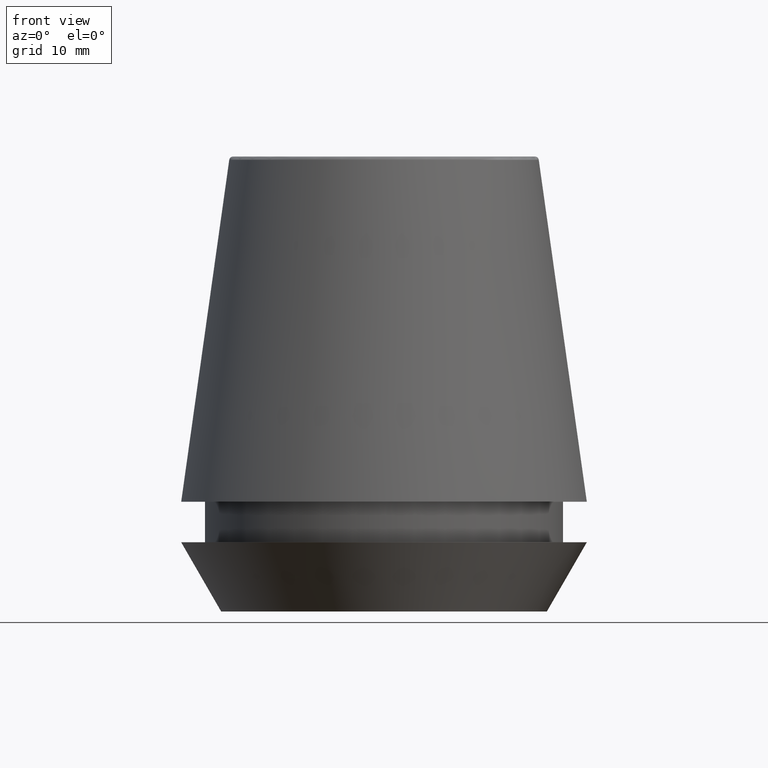
[diagram: clean part render]
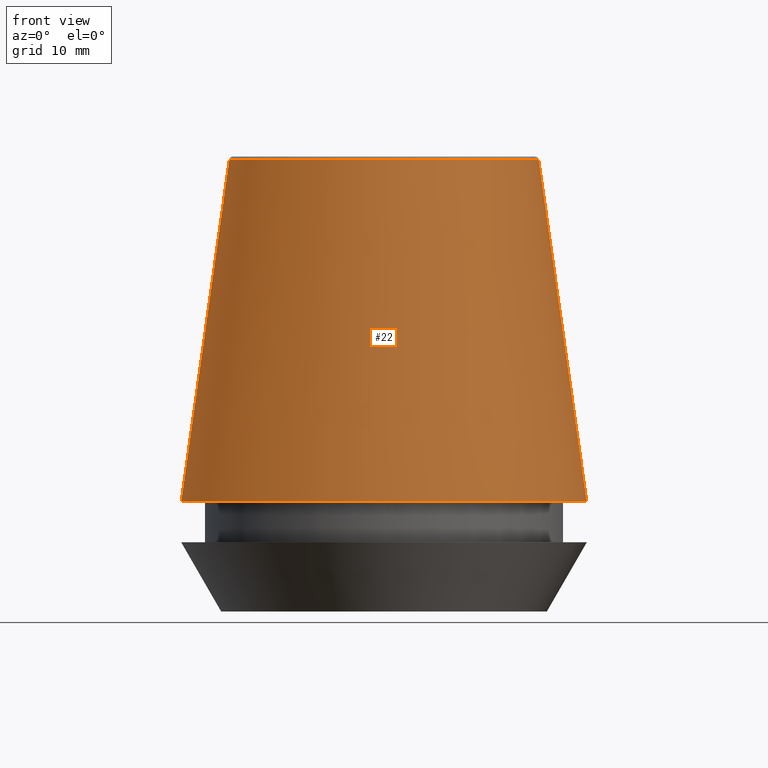
[diagram: same view with one face highlighted and labeled with its STEP entity id]
A machine part, front view. The second image highlights one B-rep face of the part: STEP entity #22.
In plain terms, the highlighted conical surface has half-angle 8 deg.
Its self-contained STEP definition (entity closure, byte-faithful):
#16 = DIRECTION ( 'NONE',  ( -0.1391731009600587200, 0.0000000000000000000, -0.9902680687415712500 ) ) ;
#18 = VERTEX_POINT ( 'NONE', #40 ) ;
#22 = ADVANCED_FACE ( 'NONE', ( #27 ), #246, .T. ) ;
#27 = FACE_OUTER_BOUND ( 'NONE', #341, .T. ) ;
#37 = AXIS2_PLACEMENT_3D ( 'NONE', #310, #198, #135 ) ;
#40 = CARTESIAN_POINT ( 'NONE',  ( 15.64384277279740400, 2.213191991290356800E-015, 45.65566924038402900 ) ) ;
#76 = ORIENTED_EDGE ( 'NONE', *, *, #114, .T. ) ;
#81 = EDGE_CURVE ( 'NONE', #240, #96, #187, .T. ) ;
#92 = CARTESIAN_POINT ( 'NONE',  ( -15.64384277279740400, 0.0000000000000000000, 45.65566924038402900 ) ) ;
#96 = VERTEX_POINT ( 'NONE', #132 ) ;
#100 = DIRECTION ( 'NONE',  ( -0.0000000000000000000, -0.0000000000000000000, 1.000000000000000000 ) ) ;
#114 = EDGE_CURVE ( 'NONE', #224, #240, #357, .T. ) ;
#116 = DIRECTION ( 'NONE',  ( -0.0000000000000000000, -0.0000000000000000000, 1.000000000000000000 ) ) ;
#118 = LINE ( 'NONE', #139, #372 ) ;
#132 = CARTESIAN_POINT ( 'NONE',  ( 20.50032537154048700, 2.510565784773633700E-015, 11.09999999999999800 ) ) ;
#135 = DIRECTION ( 'NONE',  ( -1.000000000000000000, 0.0000000000000000000, 0.0000000000000000000 ) ) ;
#139 = CARTESIAN_POINT ( 'NONE',  ( 20.50032537154048700, 2.510565784773633700E-015, 11.09999999999999800 ) ) ;
#169 = CARTESIAN_POINT ( 'NONE',  ( -20.50032537154048700, 0.0000000000000000000, 11.09999999999999800 ) ) ;
#170 = CARTESIAN_POINT ( 'NONE',  ( 0.0000000000000000000, 0.0000000000000000000, 45.65566924038402900 ) ) ;
#187 = CIRCLE ( 'NONE', #301, 20.50032537154048700 ) ;
#198 = DIRECTION ( 'NONE',  ( 0.0000000000000000000, 0.0000000000000000000, -1.000000000000000000 ) ) ;
#202 = CIRCLE ( 'NONE', #309, 15.64384277279740400 ) ;
#210 = EDGE_CURVE ( 'NONE', #224, #18, #202, .T. ) ;
#224 = VERTEX_POINT ( 'NONE', #92 ) ;
#240 = VERTEX_POINT ( 'NONE', #169 ) ;
#246 = CONICAL_SURFACE ( 'NONE', #37, 20.50032537154048700, 0.1396263401595396200 ) ;
#279 = DIRECTION ( 'NONE',  ( 1.000000000000000000, 0.0000000000000000000, 0.0000000000000000000 ) ) ;
#301 = AXIS2_PLACEMENT_3D ( 'NONE', #312, #100, #279 ) ;
#309 = AXIS2_PLACEMENT_3D ( 'NONE', #170, #116, #353 ) ;
#310 = CARTESIAN_POINT ( 'NONE',  ( 0.0000000000000000000, 0.0000000000000000000, 11.09999999999999800 ) ) ;
#312 = CARTESIAN_POINT ( 'NONE',  ( 0.0000000000000000000, 0.0000000000000000000, 11.09999999999999800 ) ) ;
#341 = EDGE_LOOP ( 'NONE', ( #386, #366, #76, #375 ) ) ;
#346 = VECTOR ( 'NONE', #16, 1000.000000000000000 ) ;
#353 = DIRECTION ( 'NONE',  ( 1.000000000000000000, 0.0000000000000000000, 0.0000000000000000000 ) ) ;
#357 = LINE ( 'NONE', #373, #346 ) ;
#366 = ORIENTED_EDGE ( 'NONE', *, *, #210, .F. ) ;
#369 = EDGE_CURVE ( 'NONE', #18, #96, #118, .T. ) ;
#372 = VECTOR ( 'NONE', #385, 1000.000000000000000 ) ;
#373 = CARTESIAN_POINT ( 'NONE',  ( -20.50032537154048700, 0.0000000000000000000, 11.09999999999999800 ) ) ;
#375 = ORIENTED_EDGE ( 'NONE', *, *, #81, .T. ) ;
#385 = DIRECTION ( 'NONE',  ( 0.1391731009600587200, 1.704378926181473400E-017, -0.9902680687415712500 ) ) ;
#386 = ORIENTED_EDGE ( 'NONE', *, *, #369, .F. ) ;